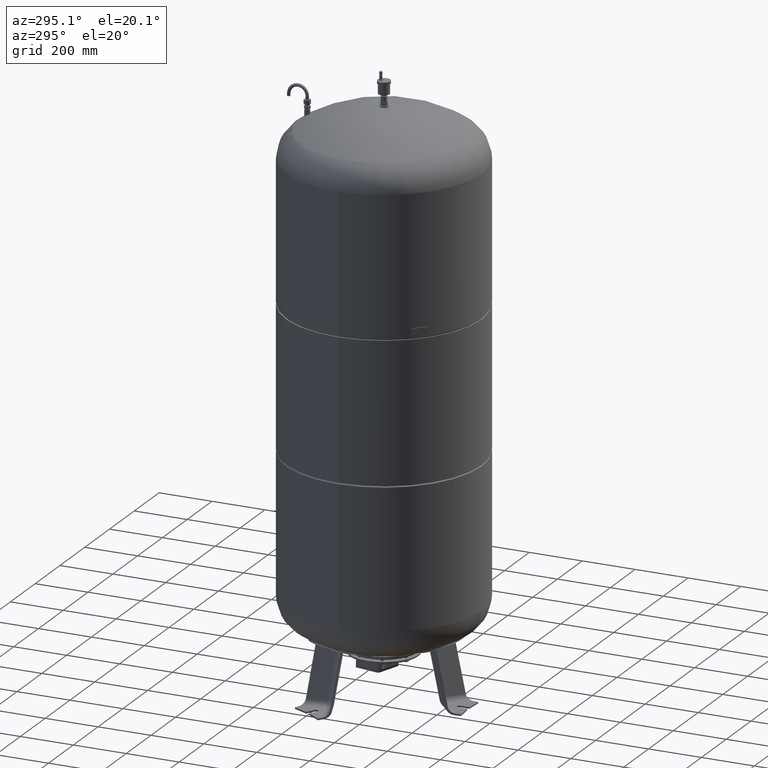
[diagram: clean part render]
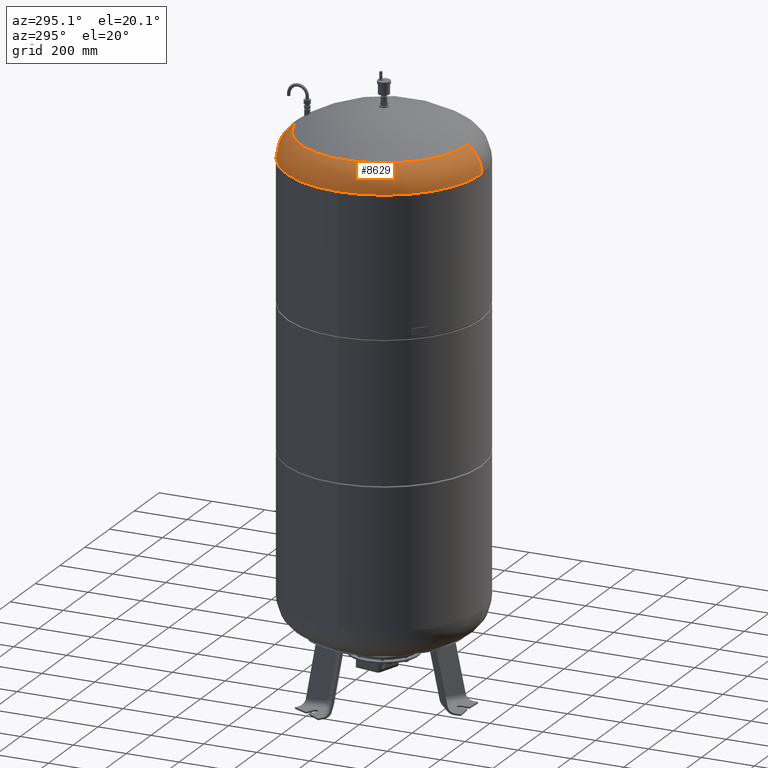
[diagram: same view with one face highlighted and labeled with its STEP entity id]
A machine part, auxiliary view. The second image highlights one B-rep face of the part: STEP entity #8629.
In plain terms, the highlighted toroidal blend (fillet) surface has major radius 254.5 mm and minor (blend) radius 115.5 mm.
Its self-contained STEP definition (entity closure, byte-faithful):
#8375=CARTESIAN_POINT('',(-370.0,1.062956E-014,1961.206120388130600));
#8376=VERTEX_POINT('',#8375);
#8383=CARTESIAN_POINT('',(2.218985E-014,369.999999999999940,1961.206120388130300));
#8384=VERTEX_POINT('',#8383);
#8385=CARTESIAN_POINT('',(-2.312058E-014,-3.468087E-014,1961.206120388130600));
#8386=DIRECTION('',(0.0,0.0,-1.0));
#8387=DIRECTION('',(1.0,0.0,0.0));
#8388=AXIS2_PLACEMENT_3D('',#8385,#8386,#8387);
#8389=CIRCLE('',#8388,370.0);
#8390=EDGE_CURVE('',#8376,#8384,#8389,.T.);
#8407=CARTESIAN_POINT('',(-2.312058E-014,-370.000000000000060,1961.206120388130600));
#8408=VERTEX_POINT('',#8407);
#8409=CARTESIAN_POINT('',(-1.114251E-014,-315.931034482758610,2059.014494274920300));
#8410=VERTEX_POINT('',#8409);
#8411=CARTESIAN_POINT('',(-2.312058E-014,-254.500000000000060,1961.206120388130300));
#8412=DIRECTION('',(-1.0,0.0,0.0));
#8413=DIRECTION('',(0.0,-1.0,0.0));
#8414=AXIS2_PLACEMENT_3D('',#8411,#8412,#8413);
#8415=CIRCLE('',#8414,115.500000000000000);
#8416=EDGE_CURVE('',#8408,#8410,#8415,.T.);
#8426=CARTESIAN_POINT('',(2.754660E-014,315.931034482758610,2059.014494274920300));
#8427=VERTEX_POINT('',#8426);
#8428=CARTESIAN_POINT('',(8.045650E-015,254.500000000000000,1961.206120388130300));
#8429=DIRECTION('',(1.0,0.0,0.0));
#8430=DIRECTION('',(0.0,1.0,0.0));
#8431=AXIS2_PLACEMENT_3D('',#8428,#8429,#8430);
#8432=CIRCLE('',#8431,115.500000000000000);
#8433=EDGE_CURVE('',#8384,#8427,#8432,.T.);
#8601=CARTESIAN_POINT('',(-1.114251E-014,-1.671377E-014,2059.014494274920300));
#8602=DIRECTION('',(0.0,0.0,-1.0));
#8603=DIRECTION('',(1.0,0.0,0.0));
#8604=AXIS2_PLACEMENT_3D('',#8601,#8602,#8603);
#8605=CIRCLE('',#8604,315.931034482758610);
#8606=EDGE_CURVE('',#8410,#8427,#8605,.T.);
#8611=CARTESIAN_POINT('',(-2.312058E-014,-3.468087E-014,1961.206120388130300));
#8612=DIRECTION('',(-1.224647E-016,-1.836970E-016,-1.0));
#8613=DIRECTION('',(0.0,-1.0,0.0));
#8614=AXIS2_PLACEMENT_3D('',#8611,#8612,#8613);
#8615=TOROIDAL_SURFACE('',#8614,254.500000000000030,115.500000000000000);
#8616=ORIENTED_EDGE('',*,*,#8416,.T.);
#8617=ORIENTED_EDGE('',*,*,#8606,.T.);
#8618=ORIENTED_EDGE('',*,*,#8433,.F.);
#8619=ORIENTED_EDGE('',*,*,#8390,.F.);
#8620=CARTESIAN_POINT('',(-2.312058E-014,-3.468087E-014,1961.206120388130600));
#8621=DIRECTION('',(0.0,0.0,-1.0));
#8622=DIRECTION('',(1.0,0.0,0.0));
#8623=AXIS2_PLACEMENT_3D('',#8620,#8621,#8622);
#8624=CIRCLE('',#8623,370.0);
#8625=EDGE_CURVE('',#8408,#8376,#8624,.T.);
#8626=ORIENTED_EDGE('',*,*,#8625,.F.);
#8627=EDGE_LOOP('',(#8616,#8617,#8618,#8619,#8626));
#8628=FACE_OUTER_BOUND('',#8627,.T.);
#8629=ADVANCED_FACE('',(#8628),#8615,.T.);